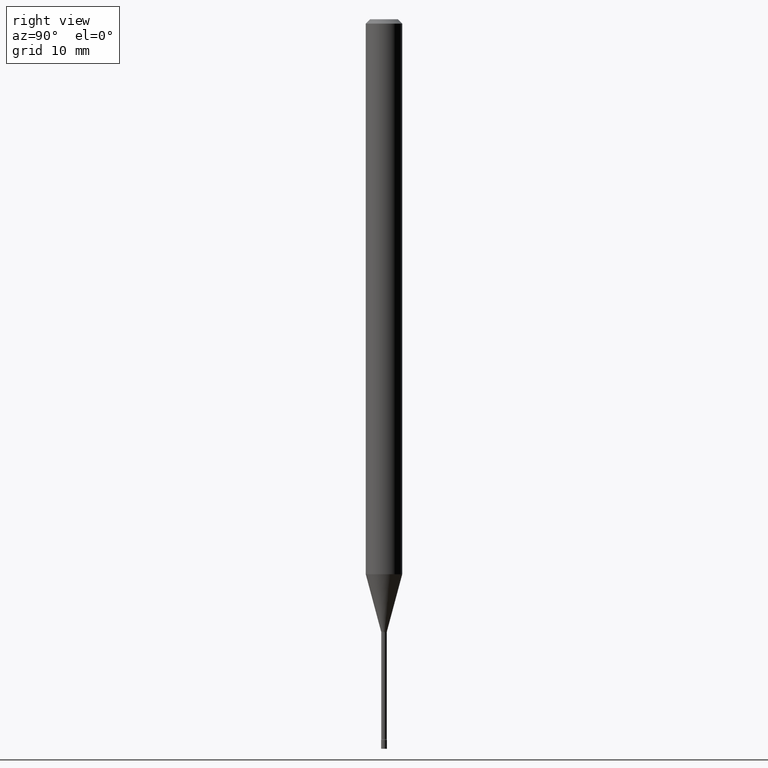
[diagram: clean part render]
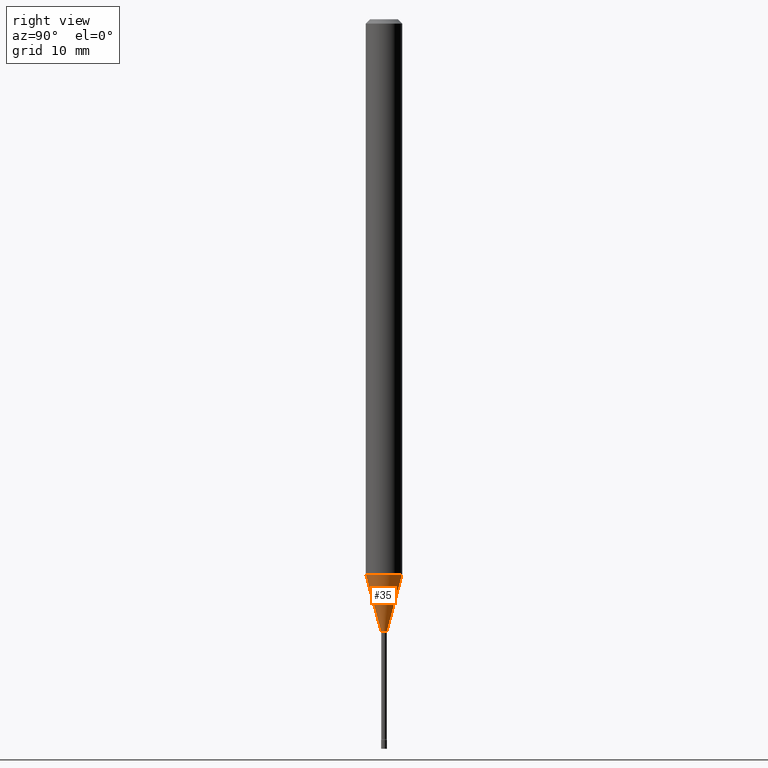
[diagram: same view with one face highlighted and labeled with its STEP entity id]
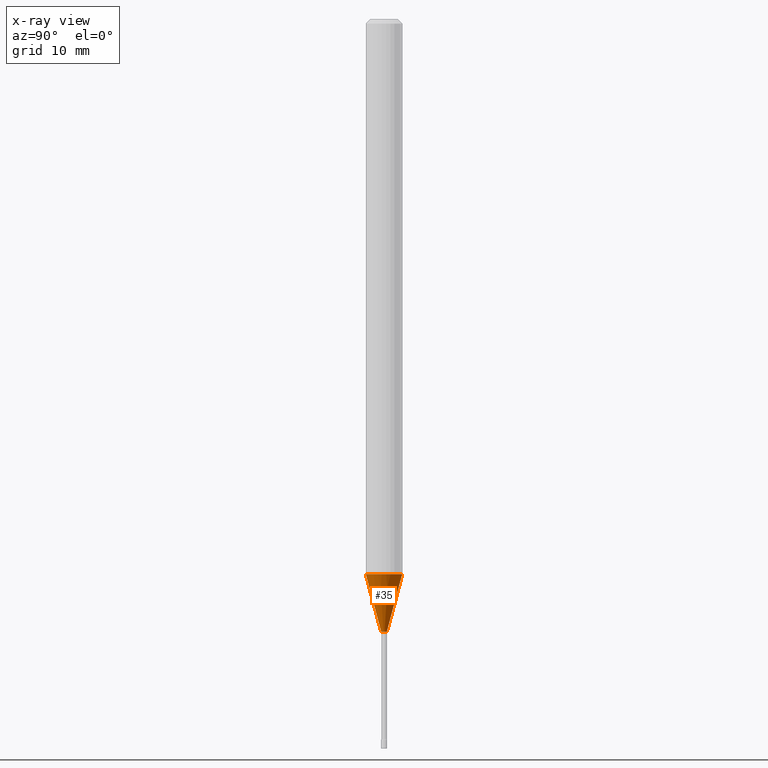
[diagram: x-ray of the same camera — body ghosted, the highlighted face saturated]
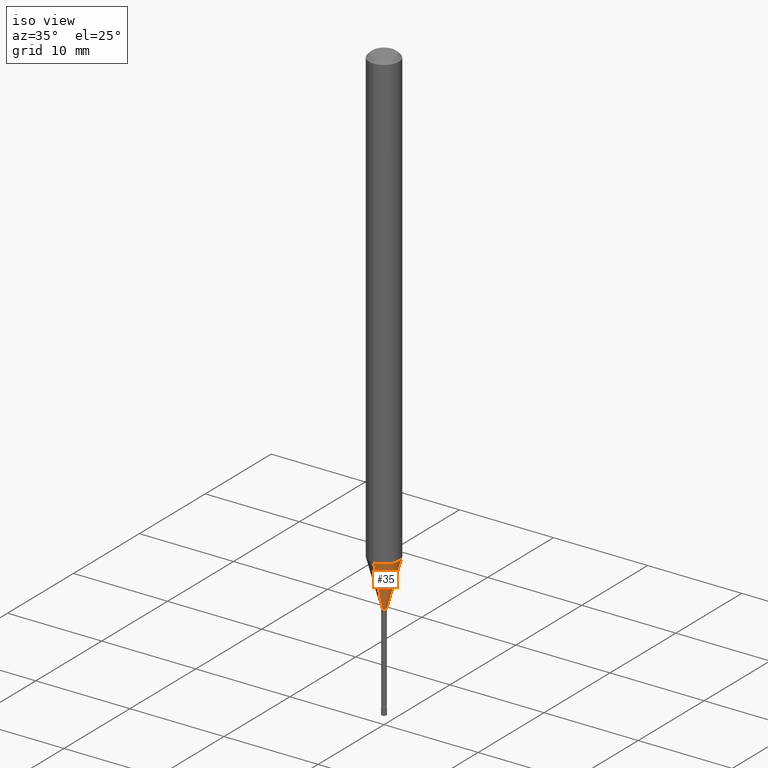
[diagram: same view with one face highlighted and labeled with its STEP entity id]
A machine part, right view. The second image highlights one B-rep face of the part: STEP entity #35.
The next image is the same camera in x-ray: the body ghosted, the highlighted face saturated — about 0% of this face is hidden behind the body in this view.
A second angle (iso view) of the same face is appended — the face is thin or edge-on in the first view.
In plain terms, the highlighted conical surface has half-angle 15 deg.
Its self-contained STEP definition (entity closure, byte-faithful):
#10 = ORIENTED_EDGE ( 'NONE', *, *, #67, .F. ) ;
#27 = CARTESIAN_POINT ( 'NONE',  ( 7.042269065260031004E-17, 0.009911112605656658206, -2.098092501787272912 ) ) ;
#35 = ADVANCED_FACE ( 'NONE', ( #386 ), #464, .T. ) ;
#52 = VERTEX_POINT ( 'NONE', #194 ) ;
#54 = LINE ( 'NONE', #27, #56 ) ;
#56 = VECTOR ( 'NONE', #182, 39.37007874015748854 ) ;
#67 = EDGE_CURVE ( 'NONE', #367, #107, #162, .T. ) ;
#107 = VERTEX_POINT ( 'NONE', #368 ) ;
#121 = CARTESIAN_POINT ( 'NONE',  ( -6.920892941964616469E-17, -0.009911112605671307946, -2.098092501787272912 ) ) ;
#130 = EDGE_CURVE ( 'NONE', #367, #52, #263, .T. ) ;
#139 = ORIENTED_EDGE ( 'NONE', *, *, #232, .T. ) ;
#153 = AXIS2_PLACEMENT_3D ( 'NONE', #267, #193, #408 ) ;
#160 = DIRECTION ( 'NONE',  ( -1.807323732225328562E-15, -0.2588190451025179639, 0.9659258262890690894 ) ) ;
#162 = LINE ( 'NONE', #121, #280 ) ;
#182 = DIRECTION ( 'NONE',  ( 1.839019923739598738E-15, 0.2588190451025247363, 0.9659258262890673130 ) ) ;
#193 = DIRECTION ( 'NONE',  ( -2.445536542724447659E-29, 3.491384336263527933E-15, 1.000000000000000000 ) ) ;
#194 = CARTESIAN_POINT ( 'NONE',  ( 2.572559502513548516E-16, 0.009911112605656658206, -2.098092501787272912 ) ) ;
#232 = EDGE_CURVE ( 'NONE', #52, #456, #54, .T. ) ;
#236 = AXIS2_PLACEMENT_3D ( 'NONE', #379, #382, #337 ) ;
#242 = EDGE_LOOP ( 'NONE', ( #442, #139, #418, #10 ) ) ;
#260 = CARTESIAN_POINT ( 'NONE',  ( -6.920892941964616469E-17, -0.009911112605671307946, -2.098092501787272912 ) ) ;
#263 = CIRCLE ( 'NONE', #236, 0.009911112605663983943 ) ;
#267 = CARTESIAN_POINT ( 'NONE',  ( 4.650990121710079435E-29, -6.640012846000903437E-15, -1.901828102118093167 ) ) ;
#270 = DIRECTION ( 'NONE',  ( -2.445536542724447659E-29, 3.491384336263527933E-15, 1.000000000000000000 ) ) ;
#280 = VECTOR ( 'NONE', #160, 39.37007874015748854 ) ;
#318 = DIRECTION ( 'NONE',  ( -6.982962677686264344E-15, -1.000000000000000000, 0.000000000000000000 ) ) ;
#337 = DIRECTION ( 'NONE',  ( -6.982962677686264344E-15, -1.000000000000000000, 0.000000000000000000 ) ) ;
#367 = VERTEX_POINT ( 'NONE', #260 ) ;
#368 = CARTESIAN_POINT ( 'NONE',  ( -4.364351673553451266E-16, -0.06250000000000664746, -1.901828102118092945 ) ) ;
#379 = CARTESIAN_POINT ( 'NONE',  ( 5.130961883136935112E-29, -7.325247296772043648E-15, -2.098092501787272912 ) ) ;
#382 = DIRECTION ( 'NONE',  ( -2.445536542724447659E-29, 3.491384336263527933E-15, 1.000000000000000000 ) ) ;
#386 = FACE_OUTER_BOUND ( 'NONE', #242, .T. ) ;
#391 = AXIS2_PLACEMENT_3D ( 'NONE', #429, #270, #318 ) ;
#408 = DIRECTION ( 'NONE',  ( -6.982962677686265922E-15, -1.000000000000000000, 4.370956789862821150E-15 ) ) ;
#418 = ORIENTED_EDGE ( 'NONE', *, *, #430, .F. ) ;
#429 = CARTESIAN_POINT ( 'NONE',  ( 5.130961883136935112E-29, -7.325247296772043648E-15, -2.098092501787272912 ) ) ;
#430 = EDGE_CURVE ( 'NONE', #107, #456, #434, .T. ) ;
#434 = CIRCLE ( 'NONE', #153, 0.06250000000000000000 ) ;
#442 = ORIENTED_EDGE ( 'NONE', *, *, #130, .T. ) ;
#456 = VERTEX_POINT ( 'NONE', #491 ) ;
#464 = CONICAL_SURFACE ( 'NONE', #391, 0.009911112605663983943, 0.2617993877991500740 ) ;
#491 = CARTESIAN_POINT ( 'NONE',  ( 4.440892098501090604E-16, 0.06249999999999335948, -1.901828102118093389 ) ) ;